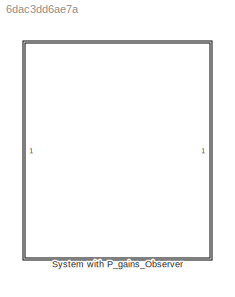
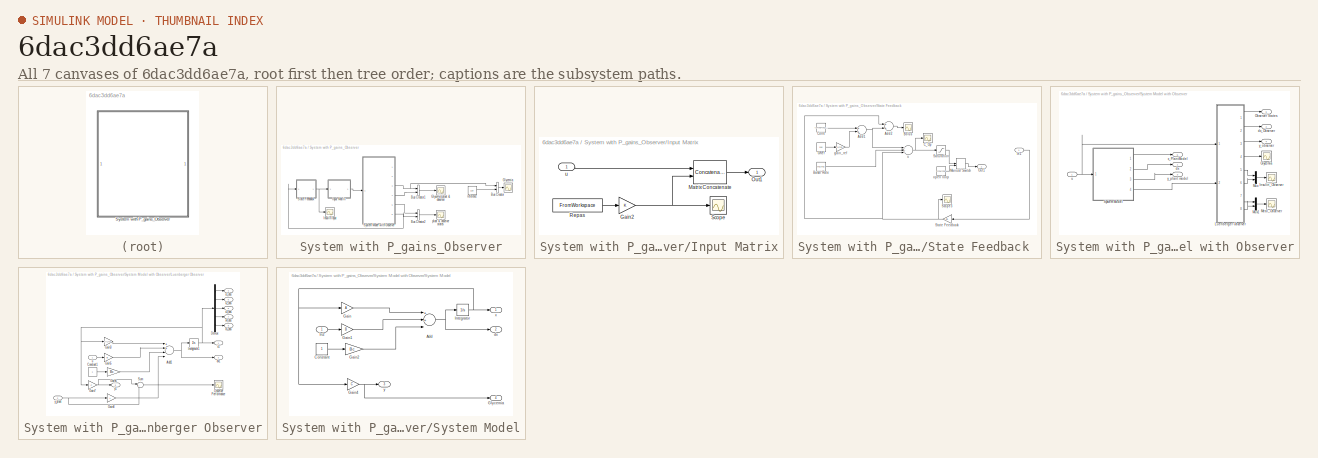
[diagram: thumbnail index - all 7 canvases of the model, root first then tree order]
MODEL slx_6dac3dd6ae7a
KIND model
CONFIG AbsTol = auto
CONFIG EnableMultiTasking = off
CONFIG FixedStep = auto
CONFIG MaxStep = auto
CONFIG MinStep = auto
CONFIG RelTol = 1e-3
CONFIG SampleTimeConstraint = Unconstrained
CONFIG Solver = VariableStepAuto
CONFIG SolverName = VariableStepAuto
CONFIG StartTime = 0.0
CONFIG StopTime = 1500
BLOCK [SubSystem] System with P_gains_Observer
  Ports = []
  RequestExecContextInheritance = off
BLOCK [BusCreator] System with P_gains_Observer/Bus Creator
  DisplayOption = bar
  InheritFromInputs = on
  Inputs = 2
  Ports = [2, 1]
BLOCK [BusCreator] System with P_gains_Observer/Bus Creator1
  DisplayOption = bar
  InheritFromInputs = on
  Inputs = 2
  Ports = [2, 1]
BLOCK [BusCreator] System with P_gains_Observer/Bus Creator2
  DisplayOption = bar
  InheritFromInputs = on
  Inputs = 2
  Ports = [2, 1]
BLOCK [Scope] System with P_gains_Observer/Glycemia
  Floating = off
  NumInputPorts = 1
  Ports = [1]
  ScopeSpecificationString = Simulink.scopes.TimeScopeBlockCfg('CurrentConfiguration', extmgr.ConfigurationSet(extmgr.Configuration('Core','General UI',true),extmgr.Configuration('Core','Source UI',true),extmgr.Configuration('Sources','WiredSimulink',true,'DataLoggingVariableName','ScopeData1'),extmgr.Configuration('Visuals','Time Domain',true,'SerializedDisplays',{struct('MinYLimReal','82.78119','MaxYLimReal','268.41783','YL...<+1563ch>
BLOCK [Scope] System with P_gains_Observer/Glycemia_plant & observer
  Floating = off
  NumInputPorts = 1
  Ports = [1]
  ScopeSpecificationString = Simulink.scopes.TimeScopeBlockCfg('CurrentConfiguration', extmgr.ConfigurationSet(extmgr.Configuration('Core','General UI',true,'FigureColor',[1 1 1]),extmgr.Configuration('Core','Source UI',true),extmgr.Configuration('Sources','WiredSimulink',true,'DataLoggingVariableName','ScopeData2'),extmgr.Configuration('Visuals','Time Domain',true,'SerializedDisplays',{struct('MinYLimReal','98.11931','MaxYLi...<+1798ch>
BLOCK [SubSystem] System with P_gains_Observer/Input Matrix
  Ports = [1, 1]
  RequestExecContextInheritance = off
BLOCK [Gain] System with P_gains_Observer/Input Matrix/Gain2
  OutDataTypeStr = Inherit: Inherit via internal rule
  ParamDataTypeStr = Inherit: Inherit via internal rule
  SaturateOnIntegerOverflow = off
BLOCK [Concatenate] System with P_gains_Observer/Input Matrix/Matrix Concatenate
  ConcatenateDimension = 2
  Ports = [2, 1]
BLOCK [Outport] System with P_gains_Observer/Input Matrix/Out1
  IconDisplay = Port number
BLOCK [FromWorkspace] System with P_gains_Observer/Input Matrix/Repas
  SampleTime = 0
  VariableName = [temps'  repas']
  ZeroCross = on
BLOCK [Scope] System with P_gains_Observer/Input Matrix/Scope
  Floating = off
  NumInputPorts = 1
  Ports = [1]
  ScopeSpecificationString = Simulink.scopes.TimeScopeBlockCfg('CurrentConfiguration', extmgr.ConfigurationSet(extmgr.Configuration('Core','General UI',true,'FigureColor',[1 1 1]),extmgr.Configuration('Core','Source UI',true),extmgr.Configuration('Sources','WiredSimulink',true,'DataLoggingVariableName','ScopeData1'),extmgr.Configuration('Visuals','Time Domain',true,'SerializedDisplays',{struct('MinYLimReal','-0.375','MaxYLimR...<+1573ch>
BLOCK [Inport] System with P_gains_Observer/Input Matrix/u
  IconDisplay = Port number
BLOCK [Scope] System with P_gains_Observer/Insulin Input
  Floating = off
  NumInputPorts = 1
  Ports = [1]
  ScopeSpecificationString = Simulink.scopes.TimeScopeBlockCfg('CurrentConfiguration', extmgr.ConfigurationSet(extmgr.Configuration('Core','General UI',true,'FigureColor',[1 1 1]),extmgr.Configuration('Core','Source UI',true),extmgr.Configuration('Sources','WiredSimulink',true,'DataLoggingVariableName','ScopeData1'),extmgr.Configuration('Visuals','Time Domain',true,'SerializedDisplays',{struct('MinYLimReal','-0.02447','MaxYLi...<+1677ch>
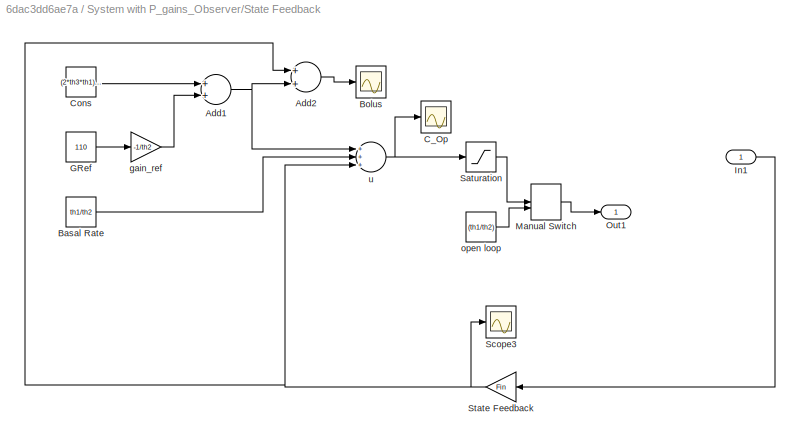
BLOCK [SubSystem] System with P_gains_Observer/State Feedback 
  Ports = [1, 1]
  RequestExecContextInheritance = off
BLOCK [Sum] System with P_gains_Observer/State Feedback /Add1
  InputSameDT = off
  OutDataTypeStr = Inherit: Inherit via internal rule
  Ports = [2, 1]
  SaturateOnIntegerOverflow = off
BLOCK [Sum] System with P_gains_Observer/State Feedback /Add2
  InputSameDT = off
  OutDataTypeStr = Inherit: Inherit via internal rule
  Ports = [2, 1]
  SaturateOnIntegerOverflow = off
BLOCK [Constant] System with P_gains_Observer/State Feedback /Basal Rate
  Value = th1/th2
  VectorParams1D = off
BLOCK [Scope] System with P_gains_Observer/State Feedback /Bolus
  Floating = off
  NumInputPorts = 1
  Ports = [1]
  ScopeSpecificationString = Simulink.scopes.TimeScopeBlockCfg('CurrentConfiguration', extmgr.ConfigurationSet(extmgr.Configuration('Core','General UI',true,'FigureColor',[0.501960784313725 0.501960784313725 0.501960784313725]),extmgr.Configuration('Core','Source UI',true),extmgr.Configuration('Sources','WiredSimulink',true,'DataLoggingVariableName','ScopeData1'),extmgr.Configuration('Visuals','Time Domain',true,'SerializedDi...<+1864ch>
BLOCK [Scope] System with P_gains_Observer/State Feedback /C_Op
  Floating = off
  NumInputPorts = 1
  Ports = [1]
  ScopeSpecificationString = Simulink.scopes.TimeScopeBlockCfg('CurrentConfiguration', extmgr.ConfigurationSet(extmgr.Configuration('Core','General UI',true,'FigureColor',[0.501960784313725 0.501960784313725 0.501960784313725]),extmgr.Configuration('Core','Source UI',true),extmgr.Configuration('Sources','WiredSimulink',true,'DataLoggingVariableName','ScopeData2'),extmgr.Configuration('Visuals','Time Domain',true,'SerializedDi...<+1839ch>
BLOCK [Constant] System with P_gains_Observer/State Feedback /Cons
  Value = (2*th3*th1)/th2
  VectorParams1D = off
BLOCK [Constant] System with P_gains_Observer/State Feedback /GRef
  Value = 110
BLOCK [Inport] System with P_gains_Observer/State Feedback /In1
  IconDisplay = Port number
BLOCK [ManualSwitch] System with P_gains_Observer/State Feedback /Manual Switch
BLOCK [Outport] System with P_gains_Observer/State Feedback /Out1
  IconDisplay = Port number
BLOCK [Saturate] System with P_gains_Observer/State Feedback /Saturation
  InputPortMap = u0
  LowerLimit = 0
  Ports = [1, 1]
  UpperLimit = 2
BLOCK [Scope] System with P_gains_Observer/State Feedback /Scope3
  Floating = off
  NumInputPorts = 1
  Ports = [1]
  ScopeSpecificationString = Simulink.scopes.TimeScopeBlockCfg('CurrentConfiguration', extmgr.ConfigurationSet(extmgr.Configuration('Core','General UI',true),extmgr.Configuration('Core','Source UI',true),extmgr.Configuration('Sources','WiredSimulink',true,'DataLoggingVariableName','ScopeData1'),extmgr.Configuration('Visuals','Time Domain',true,'SerializedDisplays',{struct('MinYLimReal','0.08572','MaxYLimReal','0.50151','YLabe...<+1486ch>
BLOCK [Gain] System with P_gains_Observer/State Feedback /State Feedback
  Gain = Fin
  Multiplication = Matrix(K*u)
  OutDataTypeStr = Inherit: Inherit via internal rule
  ParamDataTypeStr = Inherit: Inherit via internal rule
  SaturateOnIntegerOverflow = off
BLOCK [Gain] System with P_gains_Observer/State Feedback /gain_ref
  Gain = -1/th2
  OutDataTypeStr = Inherit: Inherit via internal rule
  ParamDataTypeStr = Inherit: Inherit via internal rule
  SaturateOnIntegerOverflow = off
BLOCK [Constant] System with P_gains_Observer/State Feedback /open loop
  Value = (th1/th2)
BLOCK [Sum] System with P_gains_Observer/State Feedback /u 
  InputSameDT = off
  Inputs = +++
  OutDataTypeStr = Inherit: Inherit via internal rule
  Ports = [3, 1]
  SaturateOnIntegerOverflow = off
BLOCK [SubSystem] System with P_gains_Observer/System Model with Observer
  Ports = [1, 6]
  RequestExecContextInheritance = off
BLOCK [Scope] System with P_gains_Observer/System Model with Observer/Glycemia
  Floating = off
  NumInputPorts = 1
  Ports = [1]
  ScopeSpecificationString = Simulink.scopes.TimeScopeBlockCfg('CurrentConfiguration', extmgr.ConfigurationSet(extmgr.Configuration('Core','General UI',true),extmgr.Configuration('Core','Source UI',true),extmgr.Configuration('Sources','WiredSimulink',true,'DataLoggingVariableName','ScopeData1'),extmgr.Configuration('Visuals','Time Domain',true,'SerializedDisplays',{struct('MinYLimReal','82.78119','MaxYLimReal','268.41783','YL...<+1551ch>
BLOCK [Scope] System with P_gains_Observer/System Model with Observer/Insulin_Observer
  Floating = off
  NumInputPorts = 1
  Ports = [1]
  ScopeSpecificationString = Simulink.scopes.TimeScopeBlockCfg('CurrentConfiguration', extmgr.ConfigurationSet(extmgr.Configuration('Core','General UI',true,'FigureColor',[1 1 1]),extmgr.Configuration('Core','Source UI',true),extmgr.Configuration('Sources','WiredSimulink',true,'DataLoggingVariableName','ScopeData2'),extmgr.Configuration('Visuals','Time Domain',true,'SerializedDisplays',{struct('MinYLimReal','0.01069','MaxYLim...<+1787ch>
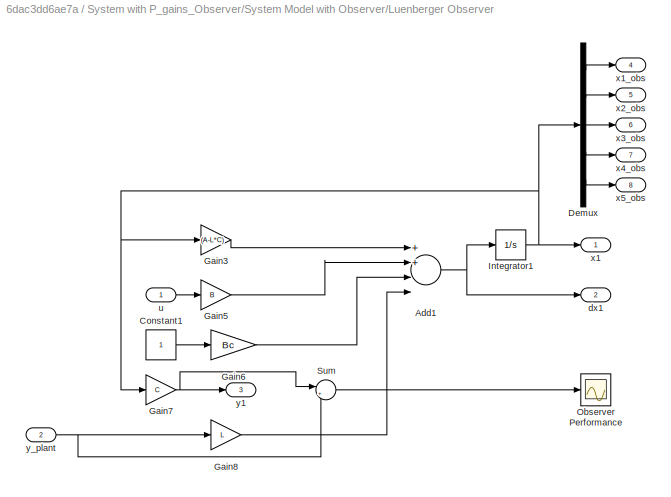
BLOCK [SubSystem] System with P_gains_Observer/System Model with Observer/Luenberger Observer
  Ports = [2, 8]
  RequestExecContextInheritance = off
BLOCK [Sum] System with P_gains_Observer/System Model with Observer/Luenberger Observer/Add1
  InputSameDT = off
  Inputs = 4
  OutDataTypeStr = Inherit: Inherit via internal rule
  Ports = [4, 1]
  SaturateOnIntegerOverflow = off
BLOCK [Constant] System with P_gains_Observer/System Model with Observer/Luenberger Observer/Constant1
BLOCK [Demux] System with P_gains_Observer/System Model with Observer/Luenberger Observer/Demux
  DisplayOption = bar
  Outputs = 5
  Ports = [1, 5]
BLOCK [Gain] System with P_gains_Observer/System Model with Observer/Luenberger Observer/Gain3
  Gain = (A-L*C)
  Multiplication = Matrix(K*u)
  OutDataTypeStr = Inherit: Inherit via internal rule
  ParamDataTypeStr = Inherit: Inherit via internal rule
  SaturateOnIntegerOverflow = off
BLOCK [Gain] System with P_gains_Observer/System Model with Observer/Luenberger Observer/Gain5
  Gain = B
  Multiplication = Matrix(K*u)
  OutDataTypeStr = Inherit: Inherit via internal rule
  ParamDataTypeStr = Inherit: Inherit via internal rule
  SaturateOnIntegerOverflow = off
BLOCK [Gain] System with P_gains_Observer/System Model with Observer/Luenberger Observer/Gain6
  Gain = Bc
  Multiplication = Matrix(K*u)
  OutDataTypeStr = Inherit: Inherit via internal rule
  ParamDataTypeStr = Inherit: Inherit via internal rule
  SaturateOnIntegerOverflow = off
BLOCK [Gain] System with P_gains_Observer/System Model with Observer/Luenberger Observer/Gain7
  Gain = C
  Multiplication = Matrix(K*u)
  OutDataTypeStr = Inherit: Inherit via internal rule
  ParamDataTypeStr = Inherit: Inherit via internal rule
  SaturateOnIntegerOverflow = off
BLOCK [Gain] System with P_gains_Observer/System Model with Observer/Luenberger Observer/Gain8
  Gain = L
  OutDataTypeStr = Inherit: Inherit via internal rule
  ParamDataTypeStr = Inherit: Inherit via internal rule
  SaturateOnIntegerOverflow = off
BLOCK [Integrator] System with P_gains_Observer/System Model with Observer/Luenberger Observer/Integrator1
  InitialCondition = [115; th1/th2; th1/th2; 0; 0]
  Ports = [1, 1]
  ZeroCross = off
BLOCK [Scope] System with P_gains_Observer/System Model with Observer/Luenberger Observer/Observer Performance
  Floating = off
  NumInputPorts = 1
  Ports = [1]
  ScopeSpecificationString = Simulink.scopes.TimeScopeBlockCfg('CurrentConfiguration', extmgr.ConfigurationSet(extmgr.Configuration('Core','General UI',true,'FigureColor',[1 1 1]),extmgr.Configuration('Core','Source UI',true),extmgr.Configuration('Sources','WiredSimulink',true,'DataLoggingVariableName','ScopeData1'),extmgr.Configuration('Visuals','Time Domain',true,'SerializedDisplays',{struct('MinYLimReal','-0.625','MaxYLimR...<+1618ch>
BLOCK [Sum] System with P_gains_Observer/System Model with Observer/Luenberger Observer/Sum
  IconShape = round
  InputSameDT = off
  Inputs = |+-
  OutDataTypeStr = Inherit: Inherit via internal rule
  Ports = [2, 1]
  SaturateOnIntegerOverflow = off
BLOCK [Outport] System with P_gains_Observer/System Model with Observer/Luenberger Observer/dx1
  IconDisplay = Port number
  Port = 2
BLOCK [Inport] System with P_gains_Observer/System Model with Observer/Luenberger Observer/u
  IconDisplay = Port number
BLOCK [Outport] System with P_gains_Observer/System Model with Observer/Luenberger Observer/x1
  IconDisplay = Port number
BLOCK [Outport] System with P_gains_Observer/System Model with Observer/Luenberger Observer/x1_obs
  IconDisplay = Port number
  Port = 4
BLOCK [Outport] System with P_gains_Observer/System Model with Observer/Luenberger Observer/x2_obs
  IconDisplay = Port number
  Port = 5
BLOCK [Outport] System with P_gains_Observer/System Model with Observer/Luenberger Observer/x3_obs
  IconDisplay = Port number
  Port = 6
BLOCK [Outport] System with P_gains_Observer/System Model with Observer/Luenberger Observer/x4_obs
  IconDisplay = Port number
  Port = 7
BLOCK [Outport] System with P_gains_Observer/System Model with Observer/Luenberger Observer/x5_obs
  IconDisplay = Port number
  Port = 8
BLOCK [Outport] System with P_gains_Observer/System Model with Observer/Luenberger Observer/y1
  IconDisplay = Port number
  Port = 3
BLOCK [Inport] System with P_gains_Observer/System Model with Observer/Luenberger Observer/y_plant 
  IconDisplay = Port number
  Port = 2
BLOCK [Scope] System with P_gains_Observer/System Model with Observer/Meal_Observer
  Floating = off
  NumInputPorts = 1
  Ports = [1]
  ScopeSpecificationString = Simulink.scopes.TimeScopeBlockCfg('CurrentConfiguration', extmgr.ConfigurationSet(extmgr.Configuration('Core','General UI',true,'FigureColor',[1 1 1]),extmgr.Configuration('Core','Source UI',true),extmgr.Configuration('Sources','WiredSimulink',true,'DataLoggingVariableName','ScopeData3'),extmgr.Configuration('Visuals','Time Domain',true,'SerializedDisplays',{struct('MinYLimReal','-0.15639','MaxYLi...<+1808ch>
BLOCK [Mux] System with P_gains_Observer/System Model with Observer/Mux
  DisplayOption = bar
  Inputs = 2
  Ports = [2, 1]
BLOCK [Mux] System with P_gains_Observer/System Model with Observer/Mux1
  DisplayOption = bar
  Inputs = 2
  Ports = [2, 1]
BLOCK [Outport] System with P_gains_Observer/System Model with Observer/Observer States
  IconDisplay = Port number
  Port = 6
BLOCK [SubSystem] System with P_gains_Observer/System Model with Observer/System Model
  Ports = [1, 4]
  RequestExecContextInheritance = off
BLOCK [Sum] System with P_gains_Observer/System Model with Observer/System Model/Add
  InputSameDT = off
  Inputs = 3
  OutDataTypeStr = Inherit: Inherit via internal rule
  Ports = [3, 1]
  SaturateOnIntegerOverflow = off
BLOCK [Constant] System with P_gains_Observer/System Model with Observer/System Model/Constant
BLOCK [Gain] System with P_gains_Observer/System Model with Observer/System Model/Gain
  Gain = A
  Multiplication = Matrix(K*u)
  OutDataTypeStr = Inherit: Inherit via internal rule
  ParamDataTypeStr = Inherit: Inherit via internal rule
  SaturateOnIntegerOverflow = off
BLOCK [Gain] System with P_gains_Observer/System Model with Observer/System Model/Gain1
  Gain = B
  Multiplication = Matrix(K*u)
  OutDataTypeStr = Inherit: Inherit via internal rule
  ParamDataTypeStr = Inherit: Inherit via internal rule
  SaturateOnIntegerOverflow = off
BLOCK [Gain] System with P_gains_Observer/System Model with Observer/System Model/Gain2
  Gain = Bc
  Multiplication = Matrix(K*u)
  OutDataTypeStr = Inherit: Inherit via internal rule
  ParamDataTypeStr = Inherit: Inherit via internal rule
  SaturateOnIntegerOverflow = off
BLOCK [Gain] System with P_gains_Observer/System Model with Observer/System Model/Gain4
  Gain = C
  Multiplication = Matrix(K*u)
  OutDataTypeStr = Inherit: Inherit via internal rule
  ParamDataTypeStr = Inherit: Inherit via internal rule
  SaturateOnIntegerOverflow = off
BLOCK [Outport] System with P_gains_Observer/System Model with Observer/System Model/Glycemia
  IconDisplay = Port number
  Port = 4
BLOCK [Inport] System with P_gains_Observer/System Model with Observer/System Model/In2
  IconDisplay = Port number
BLOCK [Integrator] System with P_gains_Observer/System Model with Observer/System Model/Integrator
  InitialCondition = x0
  Ports = [1, 1]
  ZeroCross = off
BLOCK [Outport] System with P_gains_Observer/System Model with Observer/System Model/dx
  IconDisplay = Port number
  Port = 2
BLOCK [Outport] System with P_gains_Observer/System Model with Observer/System Model/x
  IconDisplay = Port number
BLOCK [Outport] System with P_gains_Observer/System Model with Observer/System Model/y
  IconDisplay = Port number
  Port = 3
BLOCK [Outport] System with P_gains_Observer/System Model with Observer/dx
  IconDisplay = Port number
BLOCK [Outport] System with P_gains_Observer/System Model with Observer/dx_Observer
  IconDisplay = Port number
  Port = 2
BLOCK [Inport] System with P_gains_Observer/System Model with Observer/u
  IconDisplay = Port number
BLOCK [Outport] System with P_gains_Observer/System Model with Observer/x_PlantModel
  IconDisplay = Port number
  Port = 5
BLOCK [Outport] System with P_gains_Observer/System Model with Observer/y_observer
  IconDisplay = Port number
  Port = 4
BLOCK [Outport] System with P_gains_Observer/System Model with Observer/y_plant model
  IconDisplay = Port number
  Port = 3
BLOCK [Scope] System with P_gains_Observer/plant & observer states
  Floating = off
  NumInputPorts = 1
  Ports = [1]
  ScopeSpecificationString = Simulink.scopes.TimeScopeBlockCfg('CurrentConfiguration', extmgr.ConfigurationSet(extmgr.Configuration('Core','General UI',true),extmgr.Configuration('Core','Source UI',true),extmgr.Configuration('Sources','WiredSimulink',true,'DataLoggingVariableName','ScopeData2'),extmgr.Configuration('Visuals','Time Domain',true,'SerializedDisplays',{struct('MinYLimReal','-25.02245','MaxYLimReal','225.20202','Y...<+2064ch>
BLOCK [Constant] System with P_gains_Observer/reference
  Value = 110
LINE System with P_gains_Observer/Bus Creator1:1 -> System with P_gains_Observer/Glycemia_plant & observer:1
LINE System with P_gains_Observer/Bus Creator2:1 -> System with P_gains_Observer/plant & observer states:1
LINE System with P_gains_Observer/Bus Creator:1 -> System with P_gains_Observer/Glycemia:1
NET System with P_gains_Observer/Input Matrix/Gain2:1 -> System with P_gains_Observer/Input Matrix/Matrix Concatenate:2, System with P_gains_Observer/Input Matrix/Scope:1
LINE System with P_gains_Observer/Input Matrix/Matrix Concatenate:1 -> System with P_gains_Observer/Input Matrix/Out1:1
LINE System with P_gains_Observer/Input Matrix/Repas:1 -> System with P_gains_Observer/Input Matrix/Gain2:1
LINE System with P_gains_Observer/Input Matrix/u:1 -> System with P_gains_Observer/Input Matrix/Matrix Concatenate:1
LINE System with P_gains_Observer/Input Matrix:1 -> System with P_gains_Observer/System Model with Observer:1
NET System with P_gains_Observer/State Feedback /Add1:1 -> System with P_gains_Observer/State Feedback /Add2:2, System with P_gains_Observer/State Feedback /u :1
LINE System with P_gains_Observer/State Feedback /Add2:1 -> System with P_gains_Observer/State Feedback /Bolus:1
LINE System with P_gains_Observer/State Feedback /Basal Rate:1 -> System with P_gains_Observer/State Feedback /u :2
LINE System with P_gains_Observer/State Feedback /Cons:1 -> System with P_gains_Observer/State Feedback /Add1:1
LINE System with P_gains_Observer/State Feedback /GRef:1 -> System with P_gains_Observer/State Feedback /gain_ref:1
LINE System with P_gains_Observer/State Feedback /In1:1 -> System with P_gains_Observer/State Feedback /State Feedback:1
LINE System with P_gains_Observer/State Feedback /Manual Switch:1 -> System with P_gains_Observer/State Feedback /Out1:1
LINE System with P_gains_Observer/State Feedback /Saturation:1 -> System with P_gains_Observer/State Feedback /Manual Switch:1
NET System with P_gains_Observer/State Feedback /State Feedback:1 -> System with P_gains_Observer/State Feedback /Add2:1, System with P_gains_Observer/State Feedback /Scope3:1, System with P_gains_Observer/State Feedback /u :3
LINE System with P_gains_Observer/State Feedback /gain_ref:1 -> System with P_gains_Observer/State Feedback /Add1:2
LINE System with P_gains_Observer/State Feedback /open loop:1 -> System with P_gains_Observer/State Feedback /Manual Switch:2
NET System with P_gains_Observer/State Feedback /u :1 -> System with P_gains_Observer/State Feedback /C_Op:1, System with P_gains_Observer/State Feedback /Saturation:1
NET System with P_gains_Observer/State Feedback :1 -> System with P_gains_Observer/Input Matrix:1, System with P_gains_Observer/Insulin Input:1
NET System with P_gains_Observer/System Model with Observer/Luenberger Observer/Add1:1 -> System with P_gains_Observer/System Model with Observer/Luenberger Observer/Integrator1:1, System with P_gains_Observer/System Model with Observer/Luenberger Observer/dx1:1
LINE System with P_gains_Observer/System Model with Observer/Luenberger Observer/Constant1:1 -> System with P_gains_Observer/System Model with Observer/Luenberger Observer/Gain6:1
LINE System with P_gains_Observer/System Model with Observer/Luenberger Observer/Demux:1 -> System with P_gains_Observer/System Model with Observer/Luenberger Observer/x1_obs:1
LINE System with P_gains_Observer/System Model with Observer/Luenberger Observer/Demux:2 -> System with P_gains_Observer/System Model with Observer/Luenberger Observer/x2_obs:1
LINE System with P_gains_Observer/System Model with Observer/Luenberger Observer/Demux:3 -> System with P_gains_Observer/System Model with Observer/Luenberger Observer/x3_obs:1
LINE System with P_gains_Observer/System Model with Observer/Luenberger Observer/Demux:4 -> System with P_gains_Observer/System Model with Observer/Luenberger Observer/x4_obs:1
LINE System with P_gains_Observer/System Model with Observer/Luenberger Observer/Demux:5 -> System with P_gains_Observer/System Model with Observer/Luenberger Observer/x5_obs:1
LINE System with P_gains_Observer/System Model with Observer/Luenberger Observer/Gain3:1 -> System with P_gains_Observer/System Model with Observer/Luenberger Observer/Add1:1
LINE System with P_gains_Observer/System Model with Observer/Luenberger Observer/Gain5:1 -> System with P_gains_Observer/System Model with Observer/Luenberger Observer/Add1:2
LINE System with P_gains_Observer/System Model with Observer/Luenberger Observer/Gain6:1 -> System with P_gains_Observer/System Model with Observer/Luenberger Observer/Add1:3
NET System with P_gains_Observer/System Model with Observer/Luenberger Observer/Gain7:1 -> System with P_gains_Observer/System Model with Observer/Luenberger Observer/Sum:1, System with P_gains_Observer/System Model with Observer/Luenberger Observer/y1:1
LINE System with P_gains_Observer/System Model with Observer/Luenberger Observer/Gain8:1 -> System with P_gains_Observer/System Model with Observer/Luenberger Observer/Add1:4
NET System with P_gains_Observer/System Model with Observer/Luenberger Observer/Integrator1:1 -> System with P_gains_Observer/System Model with Observer/Luenberger Observer/Demux:1, System with P_gains_Observer/System Model with Observer/Luenberger Observer/Gain3:1, System with P_gains_Observer/System Model with Observer/Luenberger Observer/Gain7:1, System with P_gains_Observer/System Model with Observer/Luenberger Observer/x1:1
LINE System with P_gains_Observer/System Model with Observer/Luenberger Observer/Sum:1 -> System with P_gains_Observer/System Model with Observer/Luenberger Observer/Observer Performance:1
LINE System with P_gains_Observer/System Model with Observer/Luenberger Observer/u:1 -> System with P_gains_Observer/System Model with Observer/Luenberger Observer/Gain5:1
NET System with P_gains_Observer/System Model with Observer/Luenberger Observer/y_plant :1 -> System with P_gains_Observer/System Model with Observer/Luenberger Observer/Gain8:1, System with P_gains_Observer/System Model with Observer/Luenberger Observer/Sum:2
LINE System with P_gains_Observer/System Model with Observer/Luenberger Observer:1 -> System with P_gains_Observer/System Model with Observer/Observer States:1
LINE System with P_gains_Observer/System Model with Observer/Luenberger Observer:2 -> System with P_gains_Observer/System Model with Observer/dx_Observer:1
LINE System with P_gains_Observer/System Model with Observer/Luenberger Observer:3 -> System with P_gains_Observer/System Model with Observer/y_observer:1
LINE System with P_gains_Observer/System Model with Observer/Luenberger Observer:4 -> System with P_gains_Observer/System Model with Observer/Glycemia:1
LINE System with P_gains_Observer/System Model with Observer/Luenberger Observer:5 -> System with P_gains_Observer/System Model with Observer/Mux:1
LINE System with P_gains_Observer/System Model with Observer/Luenberger Observer:6 -> System with P_gains_Observer/System Model with Observer/Mux:2
LINE System with P_gains_Observer/System Model with Observer/Luenberger Observer:7 -> System with P_gains_Observer/System Model with Observer/Mux1:1
LINE System with P_gains_Observer/System Model with Observer/Luenberger Observer:8 -> System with P_gains_Observer/System Model with Observer/Mux1:2
LINE System with P_gains_Observer/System Model with Observer/Mux1:1 -> System with P_gains_Observer/System Model with Observer/Meal_Observer:1
LINE System with P_gains_Observer/System Model with Observer/Mux:1 -> System with P_gains_Observer/System Model with Observer/Insulin_Observer:1
NET System with P_gains_Observer/System Model with Observer/System Model/Add:1 -> System with P_gains_Observer/System Model with Observer/System Model/Integrator:1, System with P_gains_Observer/System Model with Observer/System Model/dx:1
LINE System with P_gains_Observer/System Model with Observer/System Model/Constant:1 -> System with P_gains_Observer/System Model with Observer/System Model/Gain2:1
LINE System with P_gains_Observer/System Model with Observer/System Model/Gain1:1 -> System with P_gains_Observer/System Model with Observer/System Model/Add:2
LINE System with P_gains_Observer/System Model with Observer/System Model/Gain2:1 -> System with P_gains_Observer/System Model with Observer/System Model/Add:3
NET System with P_gains_Observer/System Model with Observer/System Model/Gain4:1 -> System with P_gains_Observer/System Model with Observer/System Model/Glycemia:1, System with P_gains_Observer/System Model with Observer/System Model/y:1
LINE System with P_gains_Observer/System Model with Observer/System Model/Gain:1 -> System with P_gains_Observer/System Model with Observer/System Model/Add:1
LINE System with P_gains_Observer/System Model with Observer/System Model/In2:1 -> System with P_gains_Observer/System Model with Observer/System Model/Gain1:1
NET System with P_gains_Observer/System Model with Observer/System Model/Integrator:1 -> System with P_gains_Observer/System Model with Observer/System Model/Gain4:1, System with P_gains_Observer/System Model with Observer/System Model/Gain:1, System with P_gains_Observer/System Model with Observer/System Model/x:1
LINE System with P_gains_Observer/System Model with Observer/System Model:1 -> System with P_gains_Observer/System Model with Observer/x_PlantModel:1
LINE System with P_gains_Observer/System Model with Observer/System Model:2 -> System with P_gains_Observer/System Model with Observer/dx:1
LINE System with P_gains_Observer/System Model with Observer/System Model:3 -> System with P_gains_Observer/System Model with Observer/y_plant model:1
LINE System with P_gains_Observer/System Model with Observer/System Model:4 -> System with P_gains_Observer/System Model with Observer/Luenberger Observer:2
NET System with P_gains_Observer/System Model with Observer/u:1 -> System with P_gains_Observer/System Model with Observer/Luenberger Observer:1, System with P_gains_Observer/System Model with Observer/System Model:1
NET System with P_gains_Observer/System Model with Observer:3 -> System with P_gains_Observer/Bus Creator1:1, System with P_gains_Observer/Bus Creator:1
LINE System with P_gains_Observer/System Model with Observer:4 -> System with P_gains_Observer/Bus Creator1:2
LINE System with P_gains_Observer/System Model with Observer:5 -> System with P_gains_Observer/Bus Creator2:1
NET System with P_gains_Observer/System Model with Observer:6 -> System with P_gains_Observer/Bus Creator2:2, System with P_gains_Observer/State Feedback :1
LINE System with P_gains_Observer/reference:1 -> System with P_gains_Observer/Bus Creator:2
note: NET lines group one-source signal fan-out (src -> all destinations, sorted); 1:1 wires keep LINE
